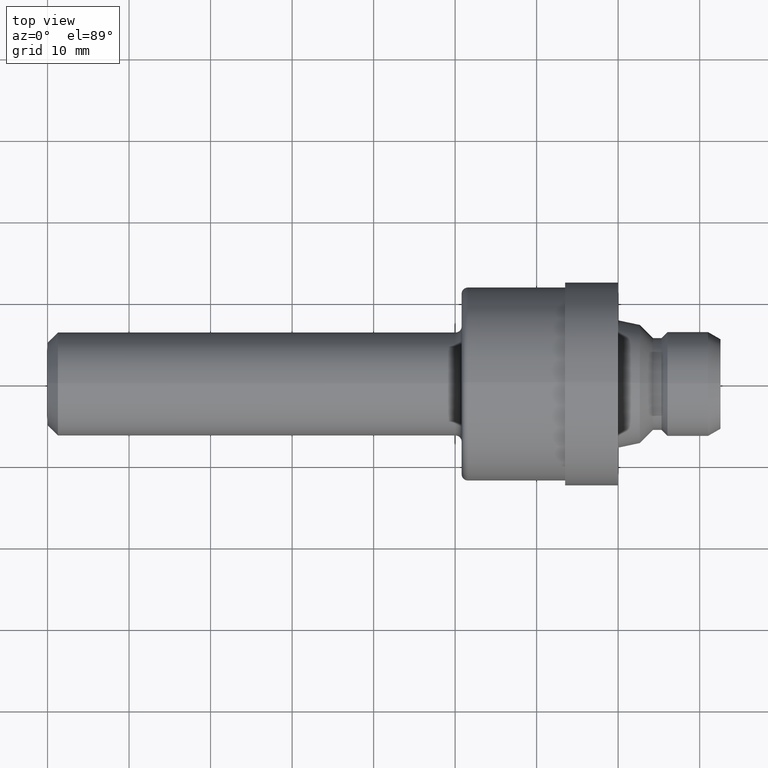
[diagram: clean part render]
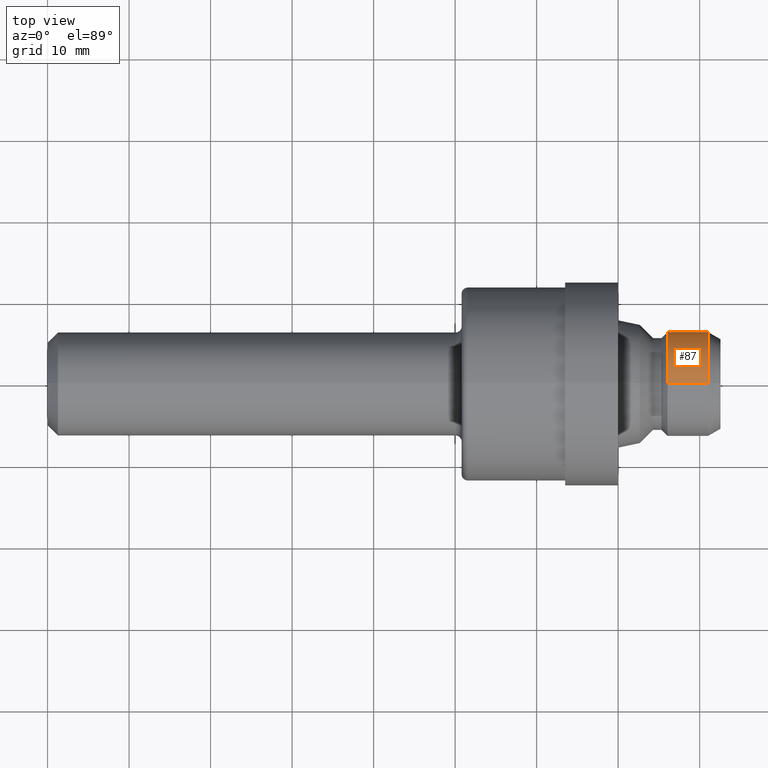
[diagram: same view with one face highlighted and labeled with its STEP entity id]
A machine part, top view. The second image highlights one B-rep face of the part: STEP entity #87.
In plain terms, the highlighted cylindrical surface (partial cylindrical patch) has radius 6.4008 mm, axis along (-1, -0, -0).
Its self-contained STEP definition (entity closure, byte-faithful):
#3 = CYLINDRICAL_SURFACE ( 'NONE', #660, 0.2520000000000000018 ) ;
#61 = CARTESIAN_POINT ( 'NONE',  ( 3.189999999999999947, 3.086109933851330028E-17, -0.2520000000000000018 ) ) ;
#62 = LINE ( 'NONE', #212, #742 ) ;
#87 = ADVANCED_FACE ( 'NONE', ( #689 ), #3, .T. ) ;
#98 = EDGE_CURVE ( 'NONE', #236, #591, #347, .T. ) ;
#105 = CARTESIAN_POINT ( 'NONE',  ( 0.0000000000000000000, 0.0000000000000000000, 0.0000000000000000000 ) ) ;
#113 = VECTOR ( 'NONE', #771, 39.37007874015748143 ) ;
#139 = CARTESIAN_POINT ( 'NONE',  ( 3.189999999999999947, 0.0000000000000000000, 0.2520000000000000018 ) ) ;
#145 = DIRECTION ( 'NONE',  ( 0.0000000000000000000, 0.0000000000000000000, 1.000000000000000000 ) ) ;
#146 = DIRECTION ( 'NONE',  ( -1.000000000000000000, -0.0000000000000000000, -0.0000000000000000000 ) ) ;
#209 = CARTESIAN_POINT ( 'NONE',  ( 3.189999999999999947, 0.0000000000000000000, 0.0000000000000000000 ) ) ;
#212 = CARTESIAN_POINT ( 'NONE',  ( 0.0000000000000000000, 0.0000000000000000000, 0.2520000000000000018 ) ) ;
#230 = DIRECTION ( 'NONE',  ( -1.000000000000000000, -0.0000000000000000000, -0.0000000000000000000 ) ) ;
#233 = CARTESIAN_POINT ( 'NONE',  ( 2.994499999999999496, 0.0000000000000000000, 0.0000000000000000000 ) ) ;
#236 = VERTEX_POINT ( 'NONE', #382 ) ;
#267 = ORIENTED_EDGE ( 'NONE', *, *, #311, .T. ) ;
#284 = ORIENTED_EDGE ( 'NONE', *, *, #710, .T. ) ;
#303 = DIRECTION ( 'NONE',  ( 0.0000000000000000000, 0.0000000000000000000, 1.000000000000000000 ) ) ;
#304 = DIRECTION ( 'NONE',  ( 0.0000000000000000000, 0.0000000000000000000, 1.000000000000000000 ) ) ;
#311 = EDGE_CURVE ( 'NONE', #372, #459, #507, .T. ) ;
#347 = CIRCLE ( 'NONE', #569, 0.2520000000000000018 ) ;
#372 = VERTEX_POINT ( 'NONE', #139 ) ;
#382 = CARTESIAN_POINT ( 'NONE',  ( 2.994499999999999496, 0.0000000000000000000, 0.2520000000000000018 ) ) ;
#392 = ORIENTED_EDGE ( 'NONE', *, *, #98, .F. ) ;
#459 = VERTEX_POINT ( 'NONE', #61 ) ;
#507 = CIRCLE ( 'NONE', #599, 0.2520000000000000018 ) ;
#563 = EDGE_CURVE ( 'NONE', #372, #236, #62, .T. ) ;
#569 = AXIS2_PLACEMENT_3D ( 'NONE', #233, #688, #304 ) ;
#591 = VERTEX_POINT ( 'NONE', #605 ) ;
#595 = DIRECTION ( 'NONE',  ( -1.000000000000000000, -0.0000000000000000000, -0.0000000000000000000 ) ) ;
#599 = AXIS2_PLACEMENT_3D ( 'NONE', #209, #595, #145 ) ;
#605 = CARTESIAN_POINT ( 'NONE',  ( 2.994499999999999496, 3.086109933851330028E-17, -0.2520000000000000018 ) ) ;
#627 = LINE ( 'NONE', #795, #113 ) ;
#660 = AXIS2_PLACEMENT_3D ( 'NONE', #105, #230, #303 ) ;
#688 = DIRECTION ( 'NONE',  ( -1.000000000000000000, -0.0000000000000000000, -0.0000000000000000000 ) ) ;
#689 = FACE_OUTER_BOUND ( 'NONE', #690, .T. ) ;
#690 = EDGE_LOOP ( 'NONE', ( #267, #284, #392, #730 ) ) ;
#710 = EDGE_CURVE ( 'NONE', #459, #591, #627, .T. ) ;
#730 = ORIENTED_EDGE ( 'NONE', *, *, #563, .F. ) ;
#742 = VECTOR ( 'NONE', #146, 39.37007874015748143 ) ;
#771 = DIRECTION ( 'NONE',  ( -1.000000000000000000, -0.0000000000000000000, -0.0000000000000000000 ) ) ;
#795 = CARTESIAN_POINT ( 'NONE',  ( 0.0000000000000000000, 3.086109933851330028E-17, -0.2520000000000000018 ) ) ;